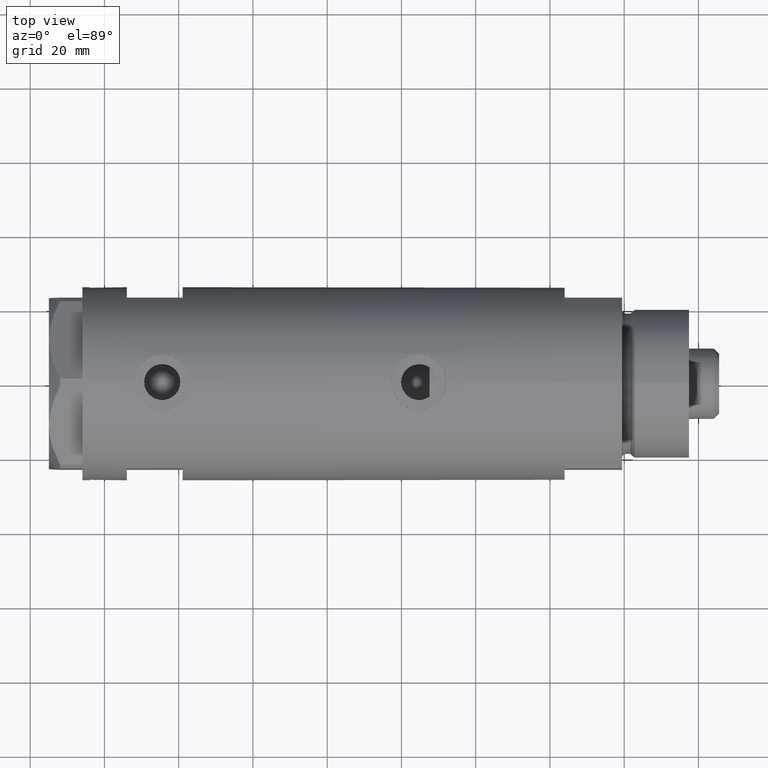
[diagram: clean part render]
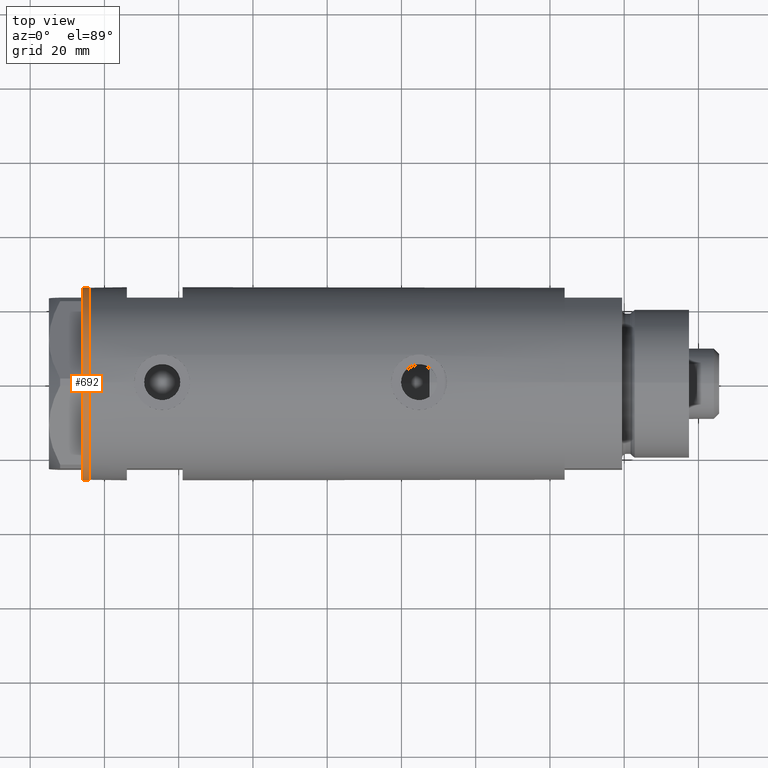
[diagram: same view with one face highlighted and labeled with its STEP entity id]
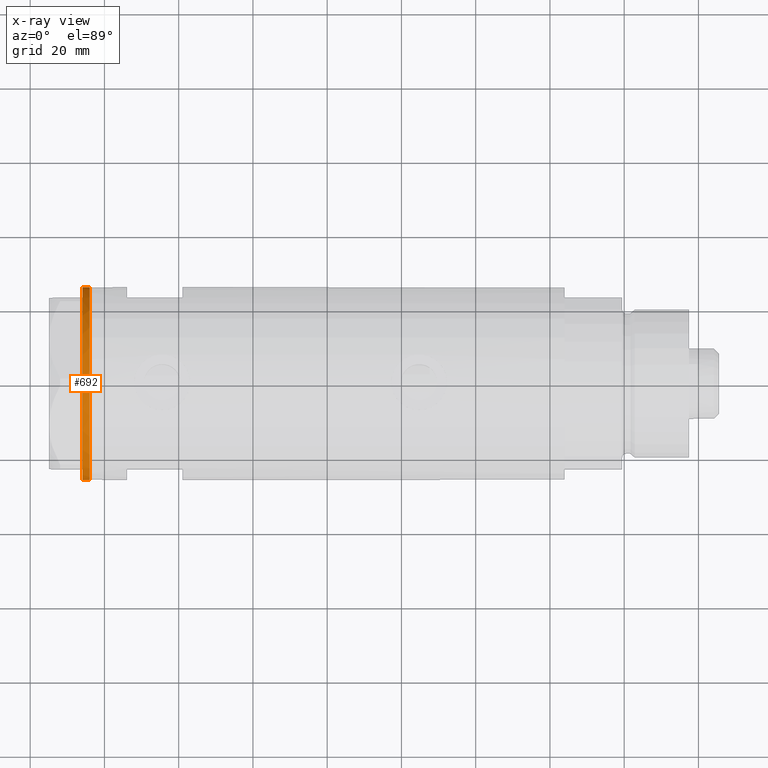
[diagram: x-ray of the same camera — body ghosted, the highlighted face saturated]
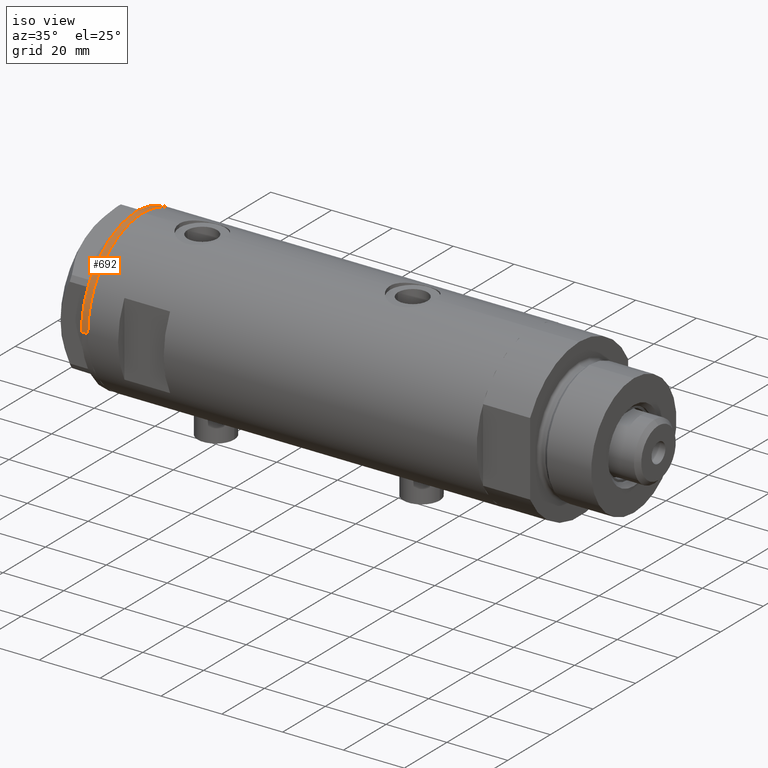
[diagram: same view with one face highlighted and labeled with its STEP entity id]
A machine part, top view. The second image highlights one B-rep face of the part: STEP entity #692.
The next image is the same camera in x-ray: the body ghosted, the highlighted face saturated — about 0% of this face is hidden behind the body in this view.
A second angle (iso view) of the same face is appended — the face is thin or edge-on in the first view.
In plain terms, the highlighted cylindrical surface (partial cylindrical patch) has radius 26 mm, axis along (-1, -0, 0).
Its self-contained STEP definition (entity closure, byte-faithful):
#44 = VERTEX_POINT ( 'NONE', #3251 ) ;
#80 = CARTESIAN_POINT ( 'NONE',  ( 0.000000000000000000, 0.000000000000000000, -2.000000000000000000 ) ) ;
#98 = CARTESIAN_POINT ( 'NONE',  ( 0.000000000000000000, 0.000000000000000000, 0.000000000000000000 ) ) ;
#173 = DIRECTION ( 'NONE',  ( 0.000000000000000000, 0.000000000000000000, -1.000000000000000000 ) ) ;
#210 = DIRECTION ( 'NONE',  ( 0.000000000000000000, 0.000000000000000000, -1.000000000000000000 ) ) ;
#237 = ORIENTED_EDGE ( 'NONE', *, *, #1038, .T. ) ;
#239 = DIRECTION ( 'NONE',  ( -1.000000000000000000, 0.000000000000000000, 0.000000000000000000 ) ) ;
#362 = VECTOR ( 'NONE', #978, 1000.000000000000000 ) ;
#373 = DIRECTION ( 'NONE',  ( -1.000000000000000000, 0.000000000000000000, 0.000000000000000000 ) ) ;
#411 = ORIENTED_EDGE ( 'NONE', *, *, #1437, .F. ) ;
#413 = CYLINDRICAL_SURFACE ( 'NONE', #4638, 26.00000000000000355 ) ;
#448 = ORIENTED_EDGE ( 'NONE', *, *, #3832, .T. ) ;
#518 = AXIS2_PLACEMENT_3D ( 'NONE', #3055, #3835, #239 ) ;
#535 = VERTEX_POINT ( 'NONE', #1609 ) ;
#550 = CIRCLE ( 'NONE', #1476, 26.00000000000000355 ) ;
#570 = EDGE_CURVE ( 'NONE', #751, #3458, #4018, .T. ) ;
#592 = DIRECTION ( 'NONE',  ( -1.000000000000000000, 0.000000000000000000, 0.000000000000000000 ) ) ;
#599 = EDGE_CURVE ( 'NONE', #4355, #4925, #2117, .T. ) ;
#608 = ORIENTED_EDGE ( 'NONE', *, *, #570, .T. ) ;
#612 = VERTEX_POINT ( 'NONE', #5082 ) ;
#624 = VERTEX_POINT ( 'NONE', #5006 ) ;
#653 = CARTESIAN_POINT ( 'NONE',  ( 0.000000000000000000, 0.000000000000000000, 0.000000000000000000 ) ) ;
#676 = CARTESIAN_POINT ( 'NONE',  ( -0.3132930502238524539, -25.99811238272274139, 0.000000000000000000 ) ) ;
#692 = ADVANCED_FACE ( 'NONE', ( #4063 ), #413, .T. ) ;
#751 = VERTEX_POINT ( 'NONE', #1622 ) ;
#753 = VERTEX_POINT ( 'NONE', #4030 ) ;
#754 = CARTESIAN_POINT ( 'NONE',  ( 0.000000000000000000, 0.000000000000000000, 0.000000000000000000 ) ) ;
#855 = AXIS2_PLACEMENT_3D ( 'NONE', #98, #2803, #2772 ) ;
#913 = CARTESIAN_POINT ( 'NONE',  ( 22.56942594318113748, -12.90986591935675065, 0.000000000000000000 ) ) ;
#978 = DIRECTION ( 'NONE',  ( -0.000000000000000000, -0.000000000000000000, 1.000000000000000000 ) ) ;
#1016 = DIRECTION ( 'NONE',  ( 0.000000000000000000, 0.000000000000000000, -1.000000000000000000 ) ) ;
#1038 = EDGE_CURVE ( 'NONE', #2959, #3230, #2514, .T. ) ;
#1039 = DIRECTION ( 'NONE',  ( 0.000000000000000000, 0.000000000000000000, -1.000000000000000000 ) ) ;
#1063 = CARTESIAN_POINT ( 'NONE',  ( -22.67167229899264669, -12.72773645103832507, 0.000000000000000000 ) ) ;
#1084 = B_SPLINE_CURVE_WITH_KNOTS ( 'NONE', 3,
 ( #2076, #913, #2099, #4093 ),
 .UNSPECIFIED., .F., .F.,
 ( 4, 4 ),
 ( 0.000000000000000000, 1.000000000000000000 ),
 .UNSPECIFIED. ) ;
#1104 = CARTESIAN_POINT ( 'NONE',  ( 0.000000000000000000, 0.000000000000000000, 0.000000000000000000 ) ) ;
#1117 = CIRCLE ( 'NONE', #3632, 26.00000000000000355 ) ;
#1142 = CARTESIAN_POINT ( 'NONE',  ( 26.00000000000000355, 0.000000000000000000, -2.000000000000000000 ) ) ;
#1166 = ORIENTED_EDGE ( 'NONE', *, *, #1984, .T. ) ;
#1180 = ORIENTED_EDGE ( 'NONE', *, *, #2660, .T. ) ;
#1184 = DIRECTION ( 'NONE',  ( -1.000000000000000000, 0.000000000000000000, 0.000000000000000000 ) ) ;
#1186 = DIRECTION ( 'NONE',  ( 0.000000000000000000, 0.000000000000000000, -1.000000000000000000 ) ) ;
#1218 = CARTESIAN_POINT ( 'NONE',  ( 26.00000000000000355, 0.000000000000000000, 0.000000000000000000 ) ) ;
#1251 = EDGE_CURVE ( 'NONE', #3458, #612, #3557, .T. ) ;
#1283 = EDGE_CURVE ( 'NONE', #2142, #4826, #2459, .T. ) ;
#1292 = AXIS2_PLACEMENT_3D ( 'NONE', #4831, #2065, #2431 ) ;
#1437 = EDGE_CURVE ( 'NONE', #624, #4826, #1760, .T. ) ;
#1476 = AXIS2_PLACEMENT_3D ( 'NONE', #3282, #173, #3311 ) ;
#1609 = CARTESIAN_POINT ( 'NONE',  ( 22.67167229899274616, -12.72773645103814211, 0.000000000000000000 ) ) ;
#1622 = CARTESIAN_POINT ( 'NONE',  ( 0.3132930502243174709, -25.99811238272273428, 0.000000000000000000 ) ) ;
#1635 = CARTESIAN_POINT ( 'NONE',  ( -26.00000000000000355, 3.184081677783118585E-15, 0.000000000000000000 ) ) ;
#1760 = LINE ( 'NONE', #3718, #362 ) ;
#1844 = CARTESIAN_POINT ( 'NONE',  ( -22.56942594318098116, -12.90986591935703665, 0.000000000000000000 ) ) ;
#1864 = AXIS2_PLACEMENT_3D ( 'NONE', #4787, #1186, #373 ) ;
#1978 = EDGE_CURVE ( 'NONE', #2074, #44, #5071, .T. ) ;
#1984 = EDGE_CURVE ( 'NONE', #4925, #3438, #2215, .T. ) ;
#2007 = DIRECTION ( 'NONE',  ( -0.000000000000000000, -0.000000000000000000, 1.000000000000000000 ) ) ;
#2052 = EDGE_CURVE ( 'NONE', #753, #624, #4564, .T. ) ;
#2065 = DIRECTION ( 'NONE',  ( 0.000000000000000000, 0.000000000000000000, -1.000000000000000000 ) ) ;
#2074 = VERTEX_POINT ( 'NONE', #1218 ) ;
#2076 = CARTESIAN_POINT ( 'NONE',  ( 22.67167229899274616, -12.72773645103814211, 0.000000000000000000 ) ) ;
#2099 = CARTESIAN_POINT ( 'NONE',  ( 22.46498481720470863, -13.09076325594764079, 0.000000000000000000 ) ) ;
#2111 = AXIS2_PLACEMENT_3D ( 'NONE', #4943, #1039, #4217 ) ;
#2117 = CIRCLE ( 'NONE', #518, 26.00000000000000355 ) ;
#2142 = VERTEX_POINT ( 'NONE', #3583 ) ;
#2215 = CIRCLE ( 'NONE', #2799, 26.00000000000000355 ) ;
#2261 = CARTESIAN_POINT ( 'NONE',  ( -0.1044411259762646482, -26.00062917530481243, 0.000000000000000000 ) ) ;
#2313 = ORIENTED_EDGE ( 'NONE', *, *, #5142, .T. ) ;
#2369 = AXIS2_PLACEMENT_3D ( 'NONE', #4248, #210, #592 ) ;
#2393 = ORIENTED_EDGE ( 'NONE', *, *, #5012, .T. ) ;
#2394 = EDGE_LOOP ( 'NONE', ( #411, #4992, #3665, #4576, #5016, #2313, #4812, #1166, #448, #608, #2691, #4011, #1180, #237, #2393, #2924 ) ) ;
#2431 = DIRECTION ( 'NONE',  ( -1.000000000000000000, 0.000000000000000000, 0.000000000000000000 ) ) ;
#2459 = CIRCLE ( 'NONE', #855, 26.00000000000000355 ) ;
#2514 = B_SPLINE_CURVE_WITH_KNOTS ( 'NONE', 3,
 ( #5096, #3175, #1844, #1063 ),
 .UNSPECIFIED., .F., .F.,
 ( 4, 4 ),
 ( 0.000000000000000000, 1.000000000000000000 ),
 .UNSPECIFIED. ) ;
#2558 = CARTESIAN_POINT ( 'NONE',  ( -22.35837924876856064, -13.27037593168466501, 0.000000000000000000 ) ) ;
#2633 = DIRECTION ( 'NONE',  ( 0.000000000000000000, 0.000000000000000000, -1.000000000000000000 ) ) ;
#2660 = EDGE_CURVE ( 'NONE', #3819, #2959, #550, .T. ) ;
#2691 = ORIENTED_EDGE ( 'NONE', *, *, #1251, .T. ) ;
#2698 = CIRCLE ( 'NONE', #2111, 26.00000000000000355 ) ;
#2772 = DIRECTION ( 'NONE',  ( -1.000000000000000000, 0.000000000000000000, 0.000000000000000000 ) ) ;
#2799 = AXIS2_PLACEMENT_3D ( 'NONE', #653, #3857, #5083 ) ;
#2803 = DIRECTION ( 'NONE',  ( 0.000000000000000000, 0.000000000000000000, -1.000000000000000000 ) ) ;
#2911 = EDGE_CURVE ( 'NONE', #753, #2074, #4427, .T. ) ;
#2924 = ORIENTED_EDGE ( 'NONE', *, *, #1283, .T. ) ;
#2941 = CARTESIAN_POINT ( 'NONE',  ( 0.000000000000000000, 0.000000000000000000, 0.000000000000000000 ) ) ;
#2959 = VERTEX_POINT ( 'NONE', #2558 ) ;
#3055 = CARTESIAN_POINT ( 'NONE',  ( 0.000000000000000000, 0.000000000000000000, 0.000000000000000000 ) ) ;
#3100 = CARTESIAN_POINT ( 'NONE',  ( 1.000000000000106803, -25.98076211353316367, 0.000000000000000000 ) ) ;
#3175 = CARTESIAN_POINT ( 'NONE',  ( -22.46498481720448481, -13.09076325594801915, 0.000000000000000000 ) ) ;
#3225 = AXIS2_PLACEMENT_3D ( 'NONE', #754, #3554, #1184 ) ;
#3230 = VERTEX_POINT ( 'NONE', #3993 ) ;
#3251 = CARTESIAN_POINT ( 'NONE',  ( 23.00000000000007461, -12.12435565298200224, 0.000000000000000000 ) ) ;
#3282 = CARTESIAN_POINT ( 'NONE',  ( 0.000000000000000000, 0.000000000000000000, 0.000000000000000000 ) ) ;
#3311 = DIRECTION ( 'NONE',  ( -1.000000000000000000, 0.000000000000000000, 0.000000000000000000 ) ) ;
#3438 = VERTEX_POINT ( 'NONE', #3100 ) ;
#3458 = VERTEX_POINT ( 'NONE', #4337 ) ;
#3483 = CARTESIAN_POINT ( 'NONE',  ( 0.1044411259767168837, -26.00062917530480888, 0.000000000000000000 ) ) ;
#3554 = DIRECTION ( 'NONE',  ( 0.000000000000000000, 0.000000000000000000, -1.000000000000000000 ) ) ;
#3557 = CIRCLE ( 'NONE', #1292, 26.00000000000000355 ) ;
#3583 = CARTESIAN_POINT ( 'NONE',  ( -22.99999999999990763, -12.12435565298232021, 0.000000000000000000 ) ) ;
#3632 = AXIS2_PLACEMENT_3D ( 'NONE', #2941, #1016, #4602 ) ;
#3640 = AXIS2_PLACEMENT_3D ( 'NONE', #1104, #2633, #4234 ) ;
#3665 = ORIENTED_EDGE ( 'NONE', *, *, #2911, .T. ) ;
#3718 = CARTESIAN_POINT ( 'NONE',  ( -26.00000000000000355, 3.184081677783118585E-15, -2.000000000000000000 ) ) ;
#3734 = EDGE_CURVE ( 'NONE', #44, #535, #2698, .T. ) ;
#3797 = CIRCLE ( 'NONE', #3225, 26.00000000000000355 ) ;
#3815 = CARTESIAN_POINT ( 'NONE',  ( 22.35837924876884131, -13.27037593168418717, 0.000000000000000000 ) ) ;
#3819 = VERTEX_POINT ( 'NONE', #4595 ) ;
#3832 = EDGE_CURVE ( 'NONE', #3438, #751, #4036, .T. ) ;
#3835 = DIRECTION ( 'NONE',  ( 0.000000000000000000, 0.000000000000000000, -1.000000000000000000 ) ) ;
#3857 = DIRECTION ( 'NONE',  ( 0.000000000000000000, 0.000000000000000000, -1.000000000000000000 ) ) ;
#3914 = CARTESIAN_POINT ( 'NONE',  ( 0.3132930502243174709, -25.99811238272273428, 0.000000000000000000 ) ) ;
#3989 = VECTOR ( 'NONE', #2007, 1000.000000000000000 ) ;
#3993 = CARTESIAN_POINT ( 'NONE',  ( -22.67167229899264669, -12.72773645103832507, 0.000000000000000000 ) ) ;
#4011 = ORIENTED_EDGE ( 'NONE', *, *, #4939, .T. ) ;
#4018 = B_SPLINE_CURVE_WITH_KNOTS ( 'NONE', 3,
 ( #3914, #3483, #2261, #676 ),
 .UNSPECIFIED., .F., .F.,
 ( 4, 4 ),
 ( 0.000000000000000000, 1.000000000000000000 ),
 .UNSPECIFIED. ) ;
#4030 = CARTESIAN_POINT ( 'NONE',  ( 26.00000000000000355, 0.000000000000000000, -2.000000000000000000 ) ) ;
#4036 = CIRCLE ( 'NONE', #2369, 26.00000000000000355 ) ;
#4063 = FACE_OUTER_BOUND ( 'NONE', #2394, .T. ) ;
#4093 = CARTESIAN_POINT ( 'NONE',  ( 22.35837924876884131, -13.27037593168418717, 0.000000000000000000 ) ) ;
#4217 = DIRECTION ( 'NONE',  ( -1.000000000000000000, 0.000000000000000000, 0.000000000000000000 ) ) ;
#4231 = CARTESIAN_POINT ( 'NONE',  ( 22.00000000000017053, -13.85640646055075464, 0.000000000000000000 ) ) ;
#4234 = DIRECTION ( 'NONE',  ( -1.000000000000000000, 0.000000000000000000, 0.000000000000000000 ) ) ;
#4248 = CARTESIAN_POINT ( 'NONE',  ( 0.000000000000000000, 0.000000000000000000, 0.000000000000000000 ) ) ;
#4337 = CARTESIAN_POINT ( 'NONE',  ( -0.3132930502238524539, -25.99811238272274139, 0.000000000000000000 ) ) ;
#4355 = VERTEX_POINT ( 'NONE', #3815 ) ;
#4410 = DIRECTION ( 'NONE',  ( 1.000000000000000000, 0.000000000000000000, 0.000000000000000000 ) ) ;
#4427 = LINE ( 'NONE', #1142, #3989 ) ;
#4458 = DIRECTION ( 'NONE',  ( -0.000000000000000000, -0.000000000000000000, 1.000000000000000000 ) ) ;
#4564 = CIRCLE ( 'NONE', #1864, 26.00000000000000355 ) ;
#4576 = ORIENTED_EDGE ( 'NONE', *, *, #1978, .T. ) ;
#4595 = CARTESIAN_POINT ( 'NONE',  ( -21.99999999999998224, -13.85640646055105485, 0.000000000000000000 ) ) ;
#4602 = DIRECTION ( 'NONE',  ( -1.000000000000000000, 0.000000000000000000, 0.000000000000000000 ) ) ;
#4638 = AXIS2_PLACEMENT_3D ( 'NONE', #80, #4458, #4410 ) ;
#4787 = CARTESIAN_POINT ( 'NONE',  ( 0.000000000000000000, 0.000000000000000000, -2.000000000000000000 ) ) ;
#4812 = ORIENTED_EDGE ( 'NONE', *, *, #599, .T. ) ;
#4826 = VERTEX_POINT ( 'NONE', #1635 ) ;
#4831 = CARTESIAN_POINT ( 'NONE',  ( 0.000000000000000000, 0.000000000000000000, 0.000000000000000000 ) ) ;
#4925 = VERTEX_POINT ( 'NONE', #4231 ) ;
#4939 = EDGE_CURVE ( 'NONE', #612, #3819, #1117, .T. ) ;
#4943 = CARTESIAN_POINT ( 'NONE',  ( 0.000000000000000000, 0.000000000000000000, 0.000000000000000000 ) ) ;
#4992 = ORIENTED_EDGE ( 'NONE', *, *, #2052, .F. ) ;
#5006 = CARTESIAN_POINT ( 'NONE',  ( -26.00000000000000355, 3.184081677783118585E-15, -2.000000000000000000 ) ) ;
#5012 = EDGE_CURVE ( 'NONE', #3230, #2142, #3797, .T. ) ;
#5016 = ORIENTED_EDGE ( 'NONE', *, *, #3734, .T. ) ;
#5071 = CIRCLE ( 'NONE', #3640, 26.00000000000000355 ) ;
#5082 = CARTESIAN_POINT ( 'NONE',  ( -0.9999999999997406519, -25.98076211353317433, 0.000000000000000000 ) ) ;
#5083 = DIRECTION ( 'NONE',  ( -1.000000000000000000, 0.000000000000000000, 0.000000000000000000 ) ) ;
#5096 = CARTESIAN_POINT ( 'NONE',  ( -22.35837924876856064, -13.27037593168466501, 0.000000000000000000 ) ) ;
#5142 = EDGE_CURVE ( 'NONE', #535, #4355, #1084, .T. ) ;